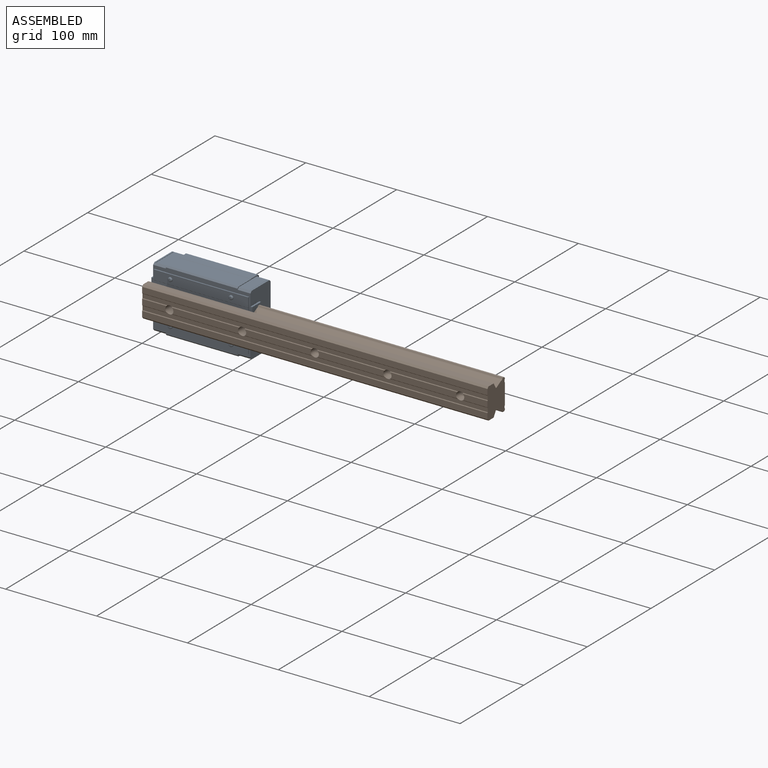
[diagram: assembled view]
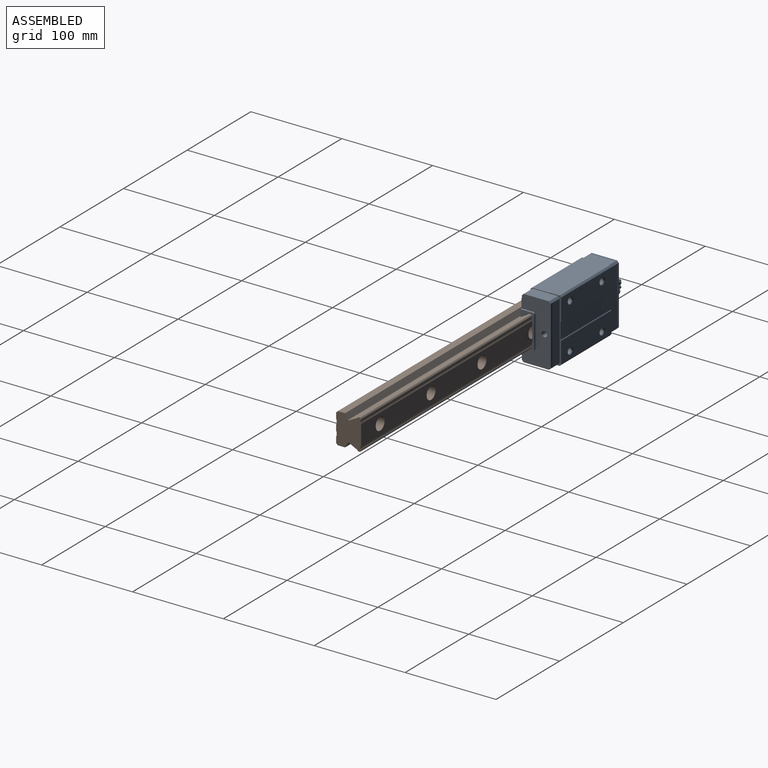
[diagram: assembled view, second angle]
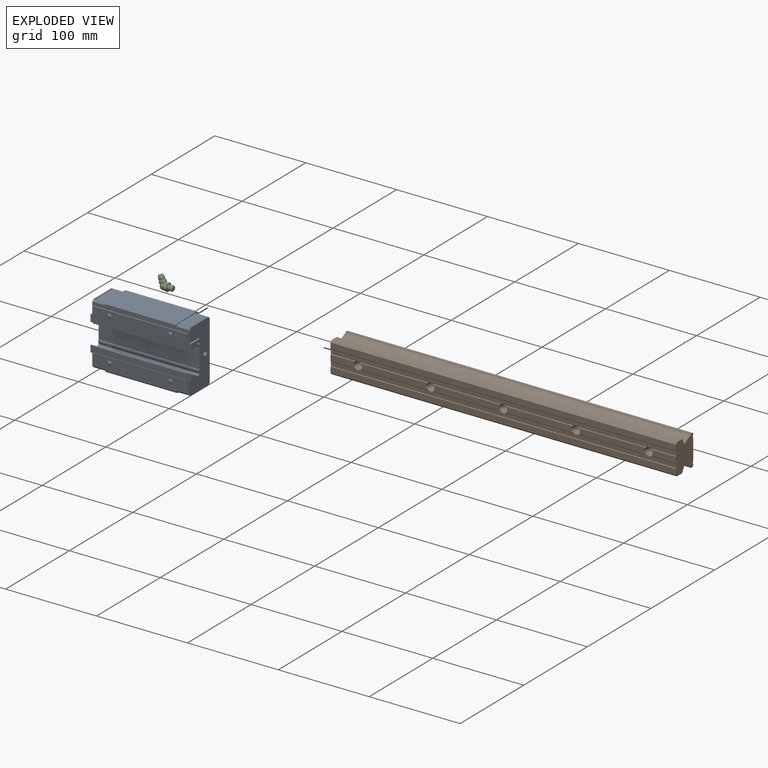
[diagram: exploded view]
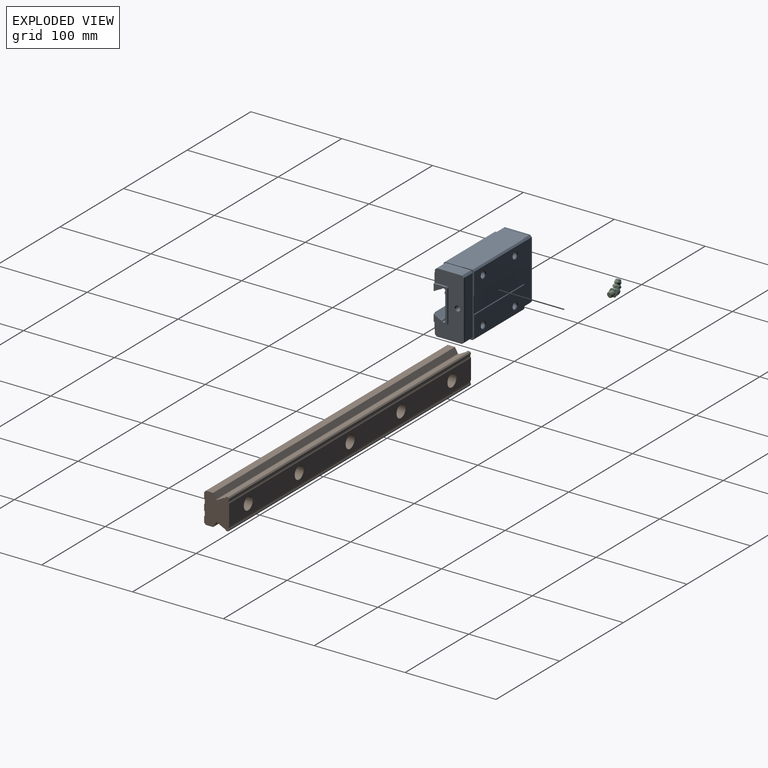
[diagram: exploded view, second angle]
ASSEMBLY  parts=3 mates=2
PART A: 126 faces, bbox 111x36.5x70 mm
  f0: plane 14x2mm, normal (0,0.71,-0.71), area 39.2mm2, adj f6,f7,f16,f17,f35,f69,f98,f99
  f1: plane 14x2mm, normal (0,0.71,0.71), area 39.2mm2, adj f2,f3,f16,f17,f35,f69,f98,f99
  f2: plane 27.8x12mm, normal (0,0,1), area 333.6mm2, adj f1,f4,f35,f124
  f3: plane 27.8x1.5mm, normal (0,0,1), area 41.7mm2, adj f1,f4,f69,f125
  f4: plane 14x2mm, normal (0,-0.71,0.71), area 39.4mm2, adj f2,f3,f20,f35,f69,f124,f125
  f5: plane 14x2mm, normal (0,-0.71,-0.71), area 39.4mm2, adj f6,f7,f21,f35,f69,f122,f123
  f6: plane 27.8x12mm, normal (0,0,-1), area 333.6mm2, adj f0,f5,f35,f123
  f7: plane 27.8x1.5mm, normal (0,0,-1), area 41.7mm2, adj f0,f5,f69,f122
  f8: plane 14x2mm, normal (0,0.71,-0.71), area 39.2mm2, adj f14,f15,f18,f19,f29,f70,f96,f97
  f9: plane 14x2mm, normal (0,0.71,0.71), area 39.2mm2, adj f10,f11,f18,f19,f29,f70,f96,f97
  f10: plane 27.8x12mm, normal (0,0,1), area 333.6mm2, adj f9,f12,f29,f120
  f11: plane 27.8x1.5mm, normal (0,0,1), area 41.7mm2, adj f9,f12,f70,f121
  f12: plane 14x2mm, normal (0,-0.71,0.71), area 39.4mm2, adj f10,f11,f25,f29,f70,f120,f121
  f13: plane 14x2mm, normal (0,-0.71,-0.71), area 39.4mm2, adj f14,f15,f26,f29,f70,f118,f119
  f14: plane 27.8x1.5mm, normal (0,0,-1), area 41.7mm2, adj f8,f13,f70,f119
  f15: plane 27.8x12mm, normal (0,0,-1), area 333.6mm2, adj f8,f13,f29,f118
  f16: plane 64x12mm, normal (0,1,0), area 768mm2, adj f0,f1,f35,f98
  f17: plane 64x1.5mm, normal (0,1,0), area 96mm2, adj f0,f1,f69,f99
  f18: plane 64x1.5mm, normal (0,1,0), area 96mm2, adj f8,f9,f70,f96
  f19: plane 64x12mm, normal (0,1,0), area 768mm2, adj f8,f9,f29,f97
  f20: plane 20.7x16mm, normal (0,-1,0), area 91.7mm2, adj f4,f24,f28,f30,f35,f69,f76,f83
  f21: plane 20.7x16mm, normal (0,-1,0), area 91.7mm2, adj f5,f28,f31,f35,f56,f69,f77,f84
  f22: plane 17.35x1.4mm, normal (-1,0,0), area 22.8mm2, adj f23,f25,f30,f51,f52,f81,f83
  f23: plane 104x6.57mm, normal (0,-1,0), area 683.3mm2, adj f22,f24,f52,f81
  f24: plane 17.35x1.4mm, normal (1,0,0), area 22.8mm2, adj f20,f23,f30,f51,f52,f81,f83
  f25: plane 20.7x16mm, normal (0,-1,0), area 91.7mm2, adj f12,f22,f27,f29,f30,f70,f71,f83
  f26: plane 20.7x16mm, normal (0,-1,0), area 91.7mm2, adj f13,f27,f29,f31,f32,f70,f72,f84
  f27: plane 38x14.9mm, normal (-1,0,0), area 191.5mm2, adj f25,f26,f71,f72,f73,f74,f75,f83
  f28: plane 38x14.9mm, normal (1,0,0), area 191.5mm2, adj f20,f21,f76,f77,f78,f79,f80,f83
  f29: plane 70x33.6mm, normal (-1,0,0), area 156.6mm2, adj f8,f9,f10,f12,f13,f15,f19,f25
  f30: plane 104x1.4mm, normal (0,0,1), area 129.8mm2, adj f20,f22,f24,f25,f29,f33,f35,f51
  f31: plane 104x1.4mm, normal (0,0,-1), area 129.8mm2, adj f21,f26,f29,f32,f34,f35,f55,f56
  f32: plane 17.35x1.4mm, normal (-1,0,0), area 22.8mm2, adj f26,f31,f53,f54,f55,f82,f84
  f33: plane 79x4.82mm, normal (0,-1,0), area 380.5mm2, adj f29,f30,f35,f40
  f34: plane 79x4.82mm, normal (0,-1,0), area 380.5mm2, adj f29,f31,f35,f41
  f35: plane 70x33.6mm, normal (1,0,0), area 156.6mm2, adj f0,f1,f2,f4,f5,f6,f16,f20
  f36: plane 79x1.65mm, normal (0,0.71,0.71), area 184.3mm2, adj f29,f35,f37,f50
  f37: plane 79x10.85mm, normal (0,0,1), area 857.1mm2, adj f29,f35,f36,f38
  f38: plane 79x0.3mm, normal (0,-0.71,0.71), area 33.5mm2, adj f29,f35,f37,f39
  f39: plane 79x19.3mm, normal (0,0,1), area 1524.7mm2, adj f29,f35,f38,f40
  f40: plane 79x1.5mm, normal (0,-0.71,0.71), area 167.6mm2, adj f29,f33,f35,f39
  f41: plane 79x1.5mm, normal (0,-0.71,-0.71), area 167.6mm2, adj f29,f34,f35,f42
  f42: plane 79x19.3mm, normal (0,0,-1), area 1524.7mm2, adj f29,f35,f41,f43
  f43: plane 79x0.3mm, normal (0,-0.71,-0.71), area 33.5mm2, adj f29,f35,f42,f44
  f44: plane 79x10.85mm, normal (0,0,-1), area 857.1mm2, adj f29,f35,f43,f45
  f45: plane 79x1.65mm, normal (0,0.71,-0.71), area 184.3mm2, adj f29,f35,f44,f46
  f46: plane 79x23.7mm, normal (0,1,0), area 1771.7mm2, adj f29,f35,f45,f47,f65,f68
  f47: plane 79x0.65mm, normal (0,0.71,0.71), area 72.6mm2, adj f29,f35,f46,f48
  f48: plane 79x18mm, normal (0,1,0), area 1422.2mm2, adj f29,f35,f47,f49
  f49: plane 79x0.65mm, normal (0,0.71,-0.71), area 72.6mm2, adj f29,f35,f48,f50
  f50: plane 79x23.7mm, normal (0,1,0), area 1771.7mm2, adj f29,f35,f36,f49,f59,f62
  f51: plane 104x10.46mm, normal (0,-1,0), area 1056.3mm2, adj f22,f24,f30,f52,f106,f109
  f52: plane 104x0.2mm, normal (0,-0.71,-0.71), area 29.4mm2, adj f22,f23,f24,f51
  f53: plane 104x6.57mm, normal (0,-1,0), area 683.3mm2, adj f32,f54,f56,f82
  f54: plane 104x0.2mm, normal (0,-0.71,0.71), area 29.4mm2, adj f32,f53,f55,f56
  f55: plane 104x10.46mm, normal (0,-1,0), area 1056.3mm2, adj f31,f32,f54,f56,f100,f103
  f56: plane 17.35x1.4mm, normal (1,0,0), area 22.8mm2, adj f21,f31,f53,f54,f55,f82,f84
  f57: cone r=0mm half-angle=60deg, axis (0,1,0), area 40.1mm2, adj f58
  f58: cylinder r=3.32mm len=13.72mm, axis (0,1,0), area 286.6mm2, adj f57,f59
  f59: cone r=3.32mm half-angle=45deg, axis (0,1,0), area 22mm2, adj f50,f58
  f60: cone r=0mm half-angle=60deg, axis (0,1,0), area 40.1mm2, adj f61
  f61: cylinder r=3.32mm len=13.72mm, axis (0,1,0), area 286.6mm2, adj f60,f62
  f62: cone r=3.32mm half-angle=45deg, axis (0,1,0), area 22mm2, adj f50,f61
  f63: cone r=0mm half-angle=60deg, axis (0,1,0), area 40.1mm2, adj f64
  f64: cylinder r=3.32mm len=13.72mm, axis (0,1,0), area 286.6mm2, adj f63,f65
  f65: cone r=3.32mm half-angle=45deg, axis (0,1,0), area 22mm2, adj f46,f64
  f66: cone r=0mm half-angle=60deg, axis (0,1,0), area 40.1mm2, adj f67
  f67: cylinder r=3.32mm len=13.72mm, axis (0,1,0), area 286.6mm2, adj f66,f68
  f68: cone r=3.32mm half-angle=45deg, axis (0,1,0), area 22mm2, adj f46,f67
  f69: plane 68x31.8mm, normal (1,0,0), area 1560.9mm2, adj f0,f1,f3,f4,f5,f7,f17,f20
  f70: plane 68x31.8mm, normal (-1,0,0), area 1560.9mm2, adj f8,f9,f11,f12,f13,f14,f18,f25
  f71: plane 13.9x2mm, normal (0,0,1), area 27.8mm2, adj f25,f27,f70,f75
  f72: plane 13.9x2mm, normal (0,0,-1), area 27.8mm2, adj f26,f27,f70,f73
  f73: plane 2x1mm, normal (0,0.71,-0.71), area 2.8mm2, adj f27,f70,f72,f74
  f74: plane 36x2mm, normal (0,1,0), area 72mm2, adj f27,f70,f73,f75
  f75: plane 2x1mm, normal (0,0.71,0.71), area 2.8mm2, adj f27,f70,f71,f74
  f76: plane 13.9x2mm, normal (0,0,1), area 27.8mm2, adj f20,f28,f69,f80
  f77: plane 13.9x2mm, normal (0,0,-1), area 27.8mm2, adj f21,f28,f69,f78
  f78: plane 2x1mm, normal (0,0.71,-0.71), area 2.8mm2, adj f28,f69,f77,f79
  f79: plane 36x2mm, normal (0,1,0), area 72mm2, adj f28,f69,f78,f80
  f80: plane 2x1mm, normal (0,0.71,0.71), area 2.8mm2, adj f28,f69,f76,f79
  f81: cylinder r=1mm len=104mm, axis (-1,0,0), area 102.4mm2, adj f22,f23,f24,f83
  f82: cylinder r=1mm len=104mm, axis (-1,0,0), area 102.4mm2, adj f32,f53,f56,f84
  f83: plane 111x7.05mm, normal (0,0.48,-0.88), area 889.4mm2, adj f20,f22,f24,f25,f27,f28,f81,f86
  f84: plane 111x7.05mm, normal (0,0.48,0.88), area 889.4mm2, adj f21,f26,f27,f28,f32,f56,f82,f87
  f85: plane 111x2.36mm, normal (0,0,-1), area 261.9mm2, adj f27,f28,f86,f95
  f86: cylinder r=2.89mm len=111mm, axis (-1,0,0), area 380.8mm2, adj f27,f28,f83,f85
  f87: cylinder r=2.89mm len=111mm, axis (-1,0,0), area 380.8mm2, adj f27,f28,f84,f88
  f88: plane 111x2.36mm, normal (0,0,1), area 261.9mm2, adj f27,f28,f87,f89
  f89: plane 111x1.2mm, normal (0,-0.71,0.71), area 188.4mm2, adj f27,f28,f88,f90
  f90: plane 111x0.87mm, normal (0,-1,0), area 96.3mm2, adj f27,f28,f89,f91
  f91: cylinder r=2.89mm len=111mm, axis (-1,0,0), area 469.9mm2, adj f27,f28,f90,f92
  f92: plane 111x22.14mm, normal (0,-1,0), area 2457mm2, adj f27,f28,f91,f93
  f93: cylinder r=2.89mm len=111mm, axis (-1,0,0), area 469.9mm2, adj f27,f28,f92,f94
  f94: plane 111x0.87mm, normal (0,-1,0), area 96.3mm2, adj f27,f28,f93,f95
  f95: plane 111x1.2mm, normal (0,-0.71,-0.71), area 188.4mm2, adj f27,f28,f85,f94
  f96: plane 65x0.5mm, normal (1,0,0), area 32.3mm2, adj f8,f9,f18,f97
  f97: plane 65x0.5mm, normal (-0.71,0.71,0), area 45.6mm2, adj f8,f9,f19,f96
  f98: plane 65x0.5mm, normal (0.71,0.71,0), area 45.6mm2, adj f0,f1,f16,f99
  f99: plane 65x0.5mm, normal (-1,0,0), area 32.3mm2, adj f0,f1,f17,f98
  f100: cylinder r=2.25mm len=4.5mm, axis (0,1,0), area 8.1mm2, adj f55,f102
  f101: plane 2.25x2.25mm, normal (0,-1,0), area 4mm2, adj f102
  f102: torus R=1.12mm, axis (0,1,0), area 20.4mm2, adj f100,f101
  f103: cylinder r=2.25mm len=4.5mm, axis (0,1,0), area 8.1mm2, adj f55,f105
  f104: plane 2.25x2.25mm, normal (0,-1,0), area 4mm2, adj f105
  f105: torus R=1.12mm, axis (0,1,0), area 20.4mm2, adj f103,f104
  f106: cylinder r=2.25mm len=4.5mm, axis (0,1,0), area 8.1mm2, adj f51,f108
  f107: plane 2.25x2.25mm, normal (0,-1,0), area 4mm2, adj f108
  f108: torus R=1.12mm, axis (0,1,0), area 20.4mm2, adj f106,f107
  f109: cylinder r=2.25mm len=4.5mm, axis (0,1,0), area 8.1mm2, adj f51,f111
  f110: plane 2.25x2.25mm, normal (0,-1,0), area 4mm2, adj f111
  f111: torus R=1.12mm, axis (0,1,0), area 20.4mm2, adj f109,f110
  f112: cone r=3mm half-angle=45deg, axis (-1,0,0), area 13.1mm2, adj f70,f113
  f113: cylinder r=2.46mm len=5.46mm, axis (1,0,0), area 84.3mm2, adj f112,f114
  f114: cone r=2.46mm half-angle=60deg, axis (-1,0,0), area 21.9mm2, adj f113
  f115: cone r=0mm half-angle=60deg, axis (1,0,0), area 21.9mm2, adj f116
  f116: cylinder r=2.46mm len=5.46mm, axis (1,0,0), area 84.3mm2, adj f115,f117
  f117: cone r=2.46mm half-angle=45deg, axis (1,0,0), area 13.1mm2, adj f69,f116
  f118: plane 28.8x0.5mm, normal (-0.71,0,-0.71), area 20mm2, adj f8,f13,f15,f119
  f119: plane 28.8x0.5mm, normal (1,0,0), area 14.2mm2, adj f8,f13,f14,f118
  f120: plane 28.8x0.5mm, normal (-0.71,0,0.71), area 20mm2, adj f9,f10,f12,f121
  f121: plane 28.8x0.5mm, normal (1,0,0), area 14.2mm2, adj f9,f11,f12,f120
  f122: plane 28.8x0.5mm, normal (-1,0,0), area 14.2mm2, adj f0,f5,f7,f123
  f123: plane 28.8x0.5mm, normal (0.71,0,-0.71), area 20mm2, adj f0,f5,f6,f122
  f124: plane 28.8x0.5mm, normal (0.71,0,0.71), area 20mm2, adj f1,f2,f4,f125
  f125: plane 28.8x0.5mm, normal (-1,0,0), area 14.2mm2, adj f1,f3,f4,f124
PART B: 62 faces, bbox 380x27.5x34 mm
  f0: plane 75.18x0.6mm, normal (0,-0.71,0.71), area 63.1mm2, adj f11,f26,f56,f59
  f1: plane 75.18x0.6mm, normal (0,-0.71,0.71), area 63.1mm2, adj f10,f26,f47,f59
  f2: plane 75.18x0.6mm, normal (0,-0.71,0.71), area 63.1mm2, adj f12,f26,f53,f56
  f3: plane 75.18x0.6mm, normal (0,-0.71,0.71), area 63.1mm2, adj f13,f26,f50,f53
  f4: plane 27.59x0.6mm, normal (0,-0.71,0.71), area 23.1mm2, adj f26,f27,f45,f50
  f5: plane 75.18x0.6mm, normal (0,-0.71,-0.71), area 63.1mm2, adj f10,f28,f47,f59
  f6: plane 75.18x0.6mm, normal (0,-0.71,-0.71), area 63.1mm2, adj f11,f28,f56,f59
  f7: plane 75.18x0.6mm, normal (0,-0.71,-0.71), area 63.1mm2, adj f12,f28,f53,f56
  f8: plane 75.18x0.6mm, normal (0,-0.71,-0.71), area 63.1mm2, adj f13,f28,f50,f53
  f9: plane 27.59x0.6mm, normal (0,-0.71,-0.71), area 23.1mm2, adj f27,f28,f45,f50
  f10: plane 73.67x6.4mm, normal (0,-1,0), area 459.7mm2, adj f1,f5,f47,f59
  f11: plane 73.67x6.4mm, normal (0,-1,0), area 459.7mm2, adj f0,f6,f56,f59
  f12: plane 73.67x6.4mm, normal (0,-1,0), area 459.7mm2, adj f2,f7,f53,f56
  f13: plane 73.67x6.4mm, normal (0,-1,0), area 459.7mm2, adj f3,f8,f50,f53
  f14: plane 27.59x0.6mm, normal (0,-0.71,0.71), area 23.1mm2, adj f15,f26,f46,f47
  f15: plane 26.84x6.4mm, normal (0,-1,0), area 165.9mm2, adj f14,f16,f46,f47
  f16: plane 27.59x0.6mm, normal (0,-0.71,-0.71), area 23.1mm2, adj f15,f28,f46,f47
  f17: plane 380x2.36mm, normal (0,0,1), area 896.6mm2, adj f18,f44,f45,f46
  f18: cylinder r=2.89mm len=380mm, axis (-1,0,0), area 1303.6mm2, adj f17,f19,f45,f46
  f19: plane 380x7.05mm, normal (0,-0.48,0.88), area 3051.9mm2, adj f18,f20,f45,f46
  f20: cylinder r=1mm len=380mm, axis (-1,0,0), area 588.1mm2, adj f19,f21,f45,f46
  f21: plane 380x5.46mm, normal (0,0.87,0.5), area 2397.1mm2, adj f20,f22,f45,f46
  f22: plane 380x8mm, normal (0,0,1), area 3038.9mm2, adj f21,f23,f45,f46
  f23: plane 380x1.85mm, normal (0,-0.71,0.71), area 994.2mm2, adj f22,f24,f45,f46
  f24: plane 380x6.35mm, normal (0,-1,0), area 2413mm2, adj f23,f25,f45,f46
  f25: plane 380x0.6mm, normal (0,-0.71,-0.71), area 322.4mm2, adj f24,f26,f45,f46
  f26: plane 380x4.4mm, normal (0,-1,0), area 1660.6mm2, adj f0,f1,f2,f3,f4,f14,f25,f45
  f27: plane 26.84x6.4mm, normal (0,-1,0), area 165.9mm2, adj f4,f9,f45,f50
  f28: plane 380x4.4mm, normal (0,-1,0), area 1660.6mm2, adj f5,f6,f7,f8,f9,f16,f29,f45
  f29: plane 380x0.6mm, normal (0,-0.71,0.71), area 322.4mm2, adj f28,f30,f45,f46
  f30: plane 380x6.35mm, normal (0,-1,0), area 2413mm2, adj f29,f31,f45,f46
  f31: plane 380x1.85mm, normal (0,-0.71,-0.71), area 994.2mm2, adj f30,f32,f45,f46
  f32: plane 380x8mm, normal (0,0,-1), area 3038.9mm2, adj f31,f33,f45,f46
  f33: plane 380x5.46mm, normal (0,0.87,-0.5), area 2397.1mm2, adj f32,f34,f45,f46
  f34: cylinder r=1mm len=380mm, axis (-1,0,0), area 588.1mm2, adj f33,f35,f45,f46
  f35: plane 380x7.05mm, normal (0,-0.48,-0.88), area 3051.9mm2, adj f34,f36,f45,f46
  f36: cylinder r=2.89mm len=380mm, axis (-1,0,0), area 1303.6mm2, adj f35,f37,f45,f46
  f37: plane 380x2.36mm, normal (0,0,-1), area 896.6mm2, adj f36,f38,f45,f46
  f38: plane 380x1.2mm, normal (0,0.71,-0.71), area 644.9mm2, adj f37,f39,f45,f46
  f39: plane 380x0.87mm, normal (0,1,0), area 329.7mm2, adj f38,f40,f45,f46
  f40: cylinder r=2.89mm len=380mm, axis (-1,0,0), area 1608.6mm2, adj f39,f41,f45,f46
  f41: plane 380x22.14mm, normal (0,1,0), area 7641.7mm2, adj f40,f42,f45,f46,f48,f51,f54,f57
  f42: cylinder r=2.89mm len=380mm, axis (-1,0,0), area 1608.6mm2, adj f41,f43,f45,f46
  f43: plane 380x0.87mm, normal (0,1,0), area 329.7mm2, adj f42,f44,f45,f46
  f44: plane 380x1.2mm, normal (0,0.71,0.71), area 644.9mm2, adj f17,f43,f45,f46
  f45: plane 34x27.5mm, normal (1,0,0), area 824.8mm2, adj f4,f9,f17,f18,f19,f20,f21,f22
  f46: plane 34x27.5mm, normal (-1,0,0), area 824.8mm2, adj f14,f15,f16,f17,f18,f19,f20,f21
  f47: cylinder r=4.5mm len=15.5mm, axis (0,-1,0), area 430.9mm2, adj f1,f5,f10,f14,f15,f16,f26,f28
  f48: cylinder r=7mm len=14mm, axis (0,-1,0), area 527.8mm2, adj f41,f49
  f49: plane 14x14mm, normal (0,1,0), area 90.3mm2, adj f47,f48
  f50: cylinder r=4.5mm len=15.5mm, axis (0,-1,0), area 430.9mm2, adj f3,f4,f8,f9,f13,f26,f27,f28
  f51: cylinder r=7mm len=14mm, axis (0,-1,0), area 527.8mm2, adj f41,f52
  f52: plane 14x14mm, normal (0,1,0), area 90.3mm2, adj f50,f51
  f53: cylinder r=4.5mm len=15.5mm, axis (0,-1,0), area 430.9mm2, adj f2,f3,f7,f8,f12,f13,f26,f28
  f54: cylinder r=7mm len=14mm, axis (0,-1,0), area 527.8mm2, adj f41,f55
  f55: plane 14x14mm, normal (0,1,0), area 90.3mm2, adj f53,f54
  f56: cylinder r=4.5mm len=15.5mm, axis (0,-1,0), area 430.9mm2, adj f0,f2,f6,f7,f11,f12,f26,f28
  f57: cylinder r=7mm len=14mm, axis (0,-1,0), area 527.8mm2, adj f41,f58
  f58: plane 14x14mm, normal (0,1,0), area 90.3mm2, adj f56,f57
  f59: cylinder r=4.5mm len=15.5mm, axis (0,-1,0), area 430.9mm2, adj f0,f1,f5,f6,f10,f11,f26,f28
  f60: cylinder r=7mm len=14mm, axis (0,-1,0), area 527.8mm2, adj f41,f61
  f61: plane 14x14mm, normal (0,1,0), area 90.3mm2, adj f59,f60
PART C: 38 faces, bbox 16.7x9.4x15.9 mm
  f0: cone r=3.44mm half-angle=45deg, axis (-0.37,0,0.93), area 7.3mm2, adj f25,f26,f27,f28,f29,f30,f31
  f1: sphere r=4mm, area 81.2mm2, adj f2,f25
  f2: cylinder r=4mm len=8mm, axis (1,0,0), area 77.5mm2, adj f1,f14,f16,f18,f20,f22,f24,f25
  f3: plane 9.24x8mm, normal (1,0,0), area 27.2mm2, adj f4,f7,f8,f9,f10,f11,f12
  f4: cylinder r=3mm len=6mm, axis (1,0,0), area 82.7mm2, adj f3,f5
  f5: cone r=3mm half-angle=45deg, axis (-1,0,0), area 14.7mm2, adj f4,f6
  f6: plane 4.77x4.77mm, normal (1,0,0), area 17.9mm2, adj f5
  f7: plane 4.77x2.15mm, normal (0,0,1), area 8.7mm2, adj f3,f8,f12,f13,f14,f21,f22
  f8: plane 4.15x2.46mm, normal (0,0.87,0.5), area 8.7mm2, adj f3,f7,f9,f19,f20,f21,f22
  f9: plane 4.15x2.46mm, normal (0,0.87,-0.5), area 8.7mm2, adj f3,f8,f10,f17,f18,f19,f20
  f10: plane 4.77x2.15mm, normal (0,0,-1), area 8.7mm2, adj f3,f9,f11,f15,f16,f17,f18
  f11: plane 4.15x2.46mm, normal (0,-0.87,-0.5), area 8.7mm2, adj f3,f10,f12,f15,f16,f23,f24
  f12: plane 4.15x2.46mm, normal (0,-0.87,0.5), area 8.7mm2, adj f3,f7,f11,f13,f14,f23,f24
  f13: cone r=4.12mm half-angle=45deg, axis (1,0,0), area 0.9mm2, adj f7,f12,f14
  f14: plane 3.46x2mm, normal (-1,0,0), area 0.4mm2, adj f2,f7,f12,f13
  f15: cone r=4.12mm half-angle=45deg, axis (1,0,0), area 0.9mm2, adj f10,f11,f16
  f16: plane 3.46x2mm, normal (-1,0,0), area 0.4mm2, adj f2,f10,f11,f15
  f17: cone r=4.12mm half-angle=45deg, axis (1,0,0), area 0.9mm2, adj f9,f10,f18
  f18: plane 3.46x2mm, normal (-1,0,0), area 0.4mm2, adj f2,f9,f10,f17
  f19: cone r=4.12mm half-angle=45deg, axis (1,0,0), area 0.9mm2, adj f8,f9,f20
  f20: plane 4x0.66mm, normal (-1,0,0), area 0.4mm2, adj f2,f8,f9,f19
  f21: cone r=4.12mm half-angle=45deg, axis (1,0,0), area 0.9mm2, adj f7,f8,f22
  f22: plane 3.46x2mm, normal (-1,0,0), area 0.4mm2, adj f2,f7,f8,f21
  f23: cone r=4.12mm half-angle=45deg, axis (1,0,0), area 0.9mm2, adj f11,f12,f24
  f24: plane 4x0.66mm, normal (-1,0,0), area 0.4mm2, adj f2,f11,f12,f23
  f25: plane 6.89x6.39mm, normal (0.37,0,-0.93), area 15.1mm2, adj f0,f1,f2
  f26: plane 3.5x2.31mm, normal (0.8,0.5,0.32), area 7.7mm2, adj f0,f27,f31,f37
  f27: plane 4.19x2.66mm, normal (0,1,0), area 7.7mm2, adj f0,f26,f28,f37
  f28: plane 3.5x2.31mm, normal (-0.8,0.5,-0.32), area 7.7mm2, adj f0,f27,f29,f37
  f29: plane 3.5x2.31mm, normal (-0.8,-0.5,-0.32), area 7.7mm2, adj f0,f28,f30,f37
  f30: plane 4.19x2.66mm, normal (0,-1,0), area 7.7mm2, adj f0,f29,f31,f37
  f31: plane 3.5x2.31mm, normal (0.8,-0.5,0.32), area 7.7mm2, adj f0,f26,f30,f37
  f32: sphere r=1.82mm, area 4.4mm2, adj f33
  f33: plane 4.85x4.5mm, normal (-0.37,0,0.93), area 14.5mm2, adj f32,f34
  f34: cone r=3.3mm half-angle=18deg, axis (0.37,0,-0.93), area 51mm2, adj f33,f35
  f35: sphere r=3.3mm, area 30mm2, adj f34,f36
  f36: torus R=3.68mm, axis (-0.37,0,0.93), area 13.5mm2, adj f35,f37
  f37: torus R=8.32mm, axis (-0.37,0,0.93), area 26.7mm2, adj f26,f27,f28,f29,f30,f31,f36
PLACE A t=(55.5,11.5,0)mm
PLACE B t=(30,0,0)mm
PLACE C t=(2,39.5,0)mm
MATE fastened C.f2 <-> A.f112  axis (1,0,0) through (2,39.5,0)mm
MATE slider A.f27 <-> B.f46  axis (-1,0,0) through (0,27.5,0)mm
